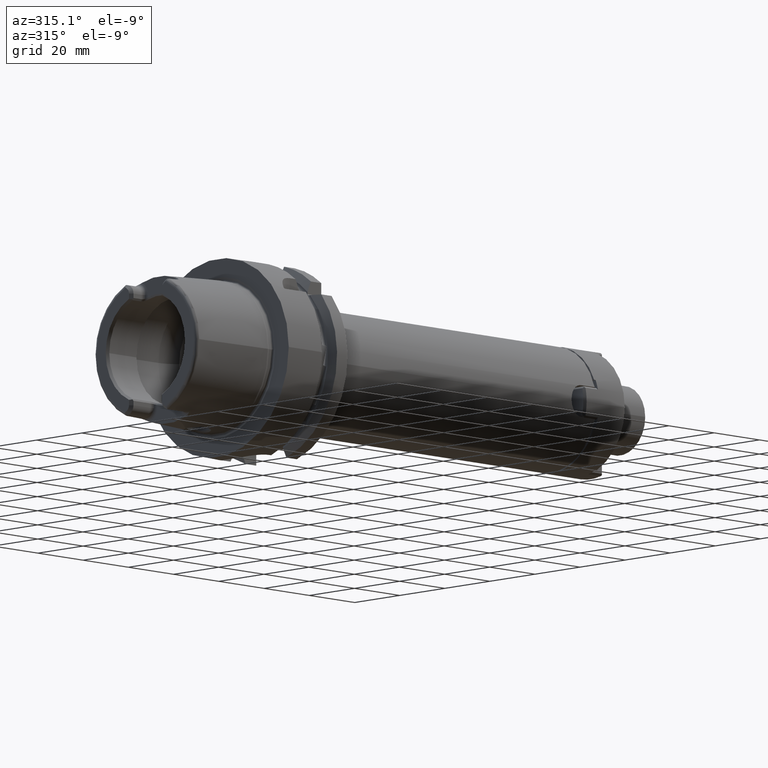
[diagram: clean part render]
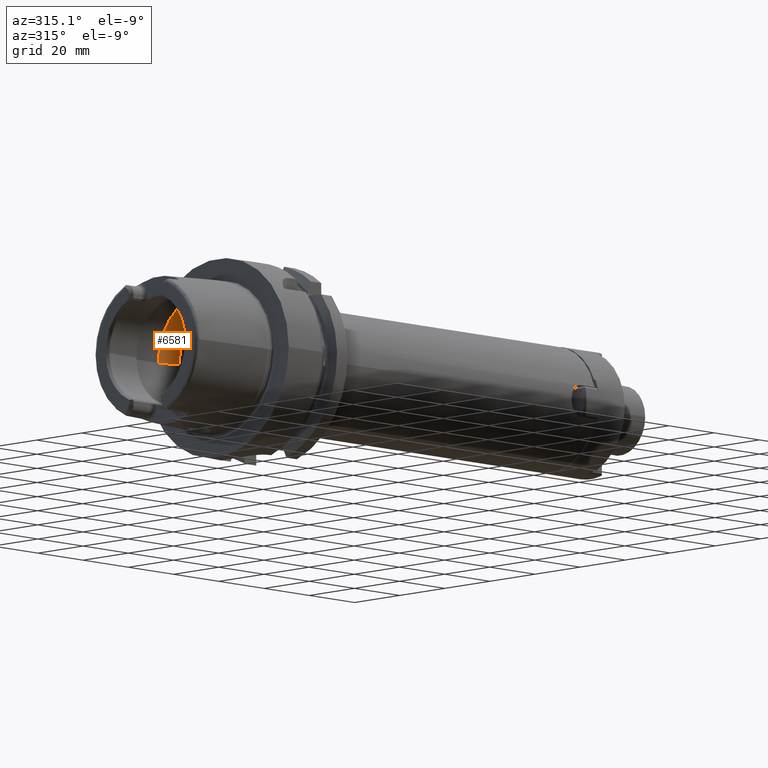
[diagram: same view with one face highlighted and labeled with its STEP entity id]
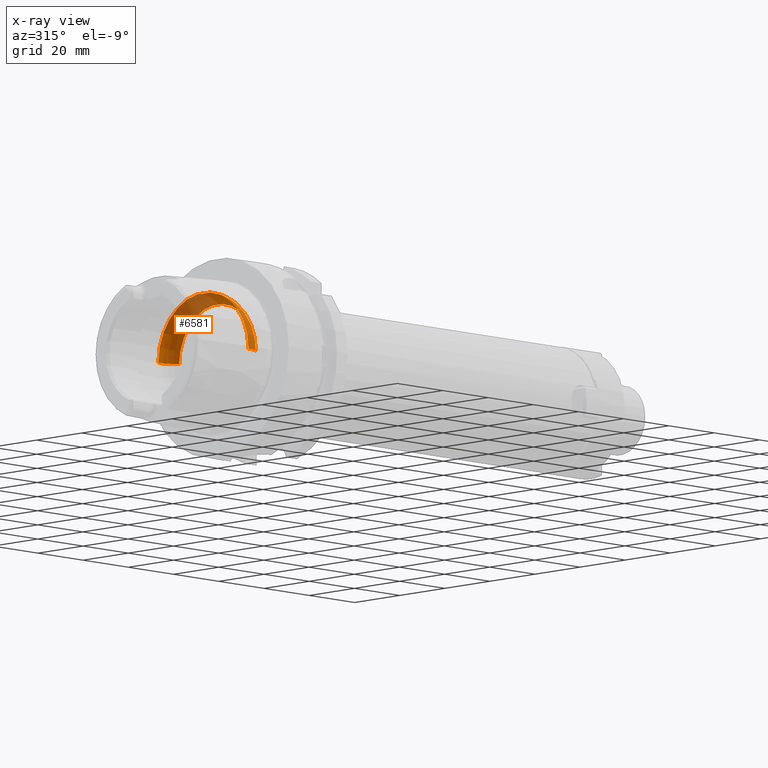
[diagram: x-ray of the same camera — body ghosted, the highlighted face saturated]
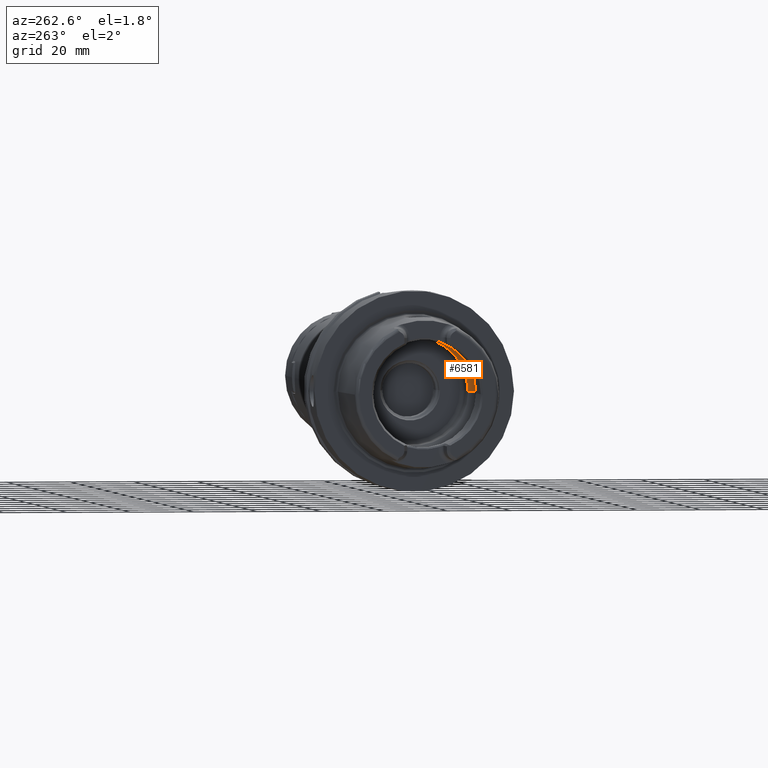
[diagram: same view with one face highlighted and labeled with its STEP entity id]
A machine part, auxiliary view. The second image highlights one B-rep face of the part: STEP entity #6581.
The next image is the same camera in x-ray: the body ghosted, the highlighted face saturated — about 32% of this face is hidden behind the body in this view.
A second angle (auxiliary view) of the same face is appended — the face is thin or edge-on in the first view.
In plain terms, the highlighted toroidal blend (fillet) surface has major radius 12 mm and minor (blend) radius 8 mm.
Its self-contained STEP definition (entity closure, byte-faithful):
#2568=CARTESIAN_POINT('',(-5.25E0,0.E0,1.992470689575E1));
#2569=CARTESIAN_POINT('',(-5.25E0,1.634249880127E-1,1.992470689575E1));
#2570=CARTESIAN_POINT('',(-5.271317000323E0,4.905125142286E-1,
1.992366860007E1));
#2571=CARTESIAN_POINT('',(-5.367938073203E0,9.753406287590E-1,
1.991846757388E1));
#2572=CARTESIAN_POINT('',(-5.525913254439E0,1.440181253243E0,1.990841194030E1));
#2573=CARTESIAN_POINT('',(-5.745012466850E0,1.883704211740E0,1.989126222791E1));
#2574=CARTESIAN_POINT('',(-6.017092970824E0,2.289932260455E0,1.986481338490E1));
#2575=CARTESIAN_POINT('',(-6.231037578916E0,2.534045566496E0,1.983915065875E1));
#2576=CARTESIAN_POINT('',(-6.344997998398E0,2.648294615690E0,1.982388800484E1));
#2578=CARTESIAN_POINT('',(-6.344997998398E0,-2.648294615690E0,
1.982388800484E1));
#2579=CARTESIAN_POINT('',(-6.231045843136E0,-2.534053851646E0,
1.983914955193E1));
#2580=CARTESIAN_POINT('',(-6.017093742818E0,-2.289943440357E0,
1.986481395775E1));
#2581=CARTESIAN_POINT('',(-5.744901596897E0,-1.883527876206E0,
1.989127237006E1));
#2582=CARTESIAN_POINT('',(-5.525828432433E0,-1.439963272778E0,
1.990841763195E1));
#2583=CARTESIAN_POINT('',(-5.367908372542E0,-9.752317929729E-1,
1.991846926373E1));
#2584=CARTESIAN_POINT('',(-5.271289109403E0,-4.903031116233E-1,
1.992367002777E1));
#2585=CARTESIAN_POINT('',(-5.25E0,-1.633414179458E-1,1.992470689575E1));
#2586=CARTESIAN_POINT('',(-5.25E0,0.E0,1.992470689575E1));
#2588=CARTESIAN_POINT('',(-1.E-1,0.E0,0.E0));
#2589=DIRECTION('',(1.E0,0.E0,0.E0));
#2590=DIRECTION('',(0.E0,1.E0,0.E0));
#2591=AXIS2_PLACEMENT_3D('',#2588,#2589,#2590);
#2613=CARTESIAN_POINT('',(-6.344997998398E0,0.E0,0.E0));
#2614=DIRECTION('',(1.E0,0.E0,0.E0));
#2615=DIRECTION('',(0.E0,1.E0,0.E0));
#2616=AXIS2_PLACEMENT_3D('',#2613,#2614,#2615);
#2618=CARTESIAN_POINT('',(-6.344997998398E0,0.E0,0.E0));
#2619=DIRECTION('',(1.E0,0.E0,0.E0));
#2620=DIRECTION('',(0.E0,-1.324147307845E-1,9.911944002421E-1));
#2621=AXIS2_PLACEMENT_3D('',#2618,#2619,#2620);
#2711=CARTESIAN_POINT('',(-6.344997998398E0,1.2E1,0.E0));
#2712=DIRECTION('',(0.E0,0.E0,1.E0));
#2713=DIRECTION('',(7.806247497998E-1,6.25E-1,0.E0));
#2714=AXIS2_PLACEMENT_3D('',#2711,#2712,#2713);
#2721=CARTESIAN_POINT('',(-6.344997998398E0,-1.2E1,0.E0));
#2722=DIRECTION('',(0.E0,0.E0,-1.E0));
#2723=DIRECTION('',(7.806247497998E-1,-6.25E-1,0.E0));
#2724=AXIS2_PLACEMENT_3D('',#2721,#2722,#2723);
#2990=CARTESIAN_POINT('',(-1.E-1,1.7E1,0.E0));
#2991=VERTEX_POINT('',#2990);
#2992=CARTESIAN_POINT('',(-6.344997998398E0,2.E1,0.E0));
#2993=VERTEX_POINT('',#2992);
#3002=CARTESIAN_POINT('',(-1.E-1,-1.7E1,0.E0));
#3003=VERTEX_POINT('',#3002);
#3004=CARTESIAN_POINT('',(-6.344997998398E0,-2.E1,0.E0));
#3005=VERTEX_POINT('',#3004);
#3173=VERTEX_POINT('',#2568);
#3174=VERTEX_POINT('',#2576);
#3175=VERTEX_POINT('',#2578);
#6562=CARTESIAN_POINT('',(-6.344997998398E0,0.E0,0.E0));
#6563=DIRECTION('',(1.E0,0.E0,0.E0));
#6564=DIRECTION('',(0.E0,-1.E0,0.E0));
#6565=AXIS2_PLACEMENT_3D('',#6562,#6563,#6564);
#6566=TOROIDAL_SURFACE('',#6565,1.2E1,8.E0);
#6567=ORIENTED_EDGE('',*,*,#6539,.F.);
#6568=ORIENTED_EDGE('',*,*,#6305,.F.);
#6570=ORIENTED_EDGE('',*,*,#6569,.T.);
#6572=ORIENTED_EDGE('',*,*,#6571,.F.);
#6574=ORIENTED_EDGE('',*,*,#6573,.F.);
#6576=ORIENTED_EDGE('',*,*,#6575,.T.);
#6578=ORIENTED_EDGE('',*,*,#6577,.T.);
#6579=EDGE_LOOP('',(#6567,#6568,#6570,#6572,#6574,#6576,#6578));
#6580=FACE_OUTER_BOUND('',#6579,.F.);
#6581=ADVANCED_FACE('',(#6580),#6566,.F.);
#2577=B_SPLINE_CURVE_WITH_KNOTS('',3,(#2568,#2569,#2570,#2571,#2572,#2573,#2574,
#2575,#2576),.UNSPECIFIED.,.F.,.F.,(4,1,1,1,1,1,4),(0.E0,1.666666666667E-1,
3.333333333333E-1,5.E-1,6.666666666667E-1,8.333333333333E-1,1.E0),
.UNSPECIFIED.);
#2587=B_SPLINE_CURVE_WITH_KNOTS('',3,(#2578,#2579,#2580,#2581,#2582,#2583,#2584,
#2585,#2586),.UNSPECIFIED.,.F.,.F.,(4,1,1,1,1,1,4),(0.E0,1.666666666667E-1,
3.333333333333E-1,5.E-1,6.666666666667E-1,8.333333333333E-1,1.E0),
.UNSPECIFIED.);
#2592=CIRCLE('',#2591,1.7E1);
#2617=CIRCLE('',#2616,2.E1);
#2622=CIRCLE('',#2621,2.E1);
#2715=CIRCLE('',#2714,8.E0);
#2725=CIRCLE('',#2724,8.E0);
#6305=EDGE_CURVE('',#3175,#3173,#2587,.T.);
#6539=EDGE_CURVE('',#3173,#3174,#2577,.T.);
#6569=EDGE_CURVE('',#3175,#3005,#2622,.T.);
#6571=EDGE_CURVE('',#3003,#3005,#2725,.T.);
#6573=EDGE_CURVE('',#2991,#3003,#2592,.T.);
#6575=EDGE_CURVE('',#2991,#2993,#2715,.T.);
#6577=EDGE_CURVE('',#2993,#3174,#2617,.T.);